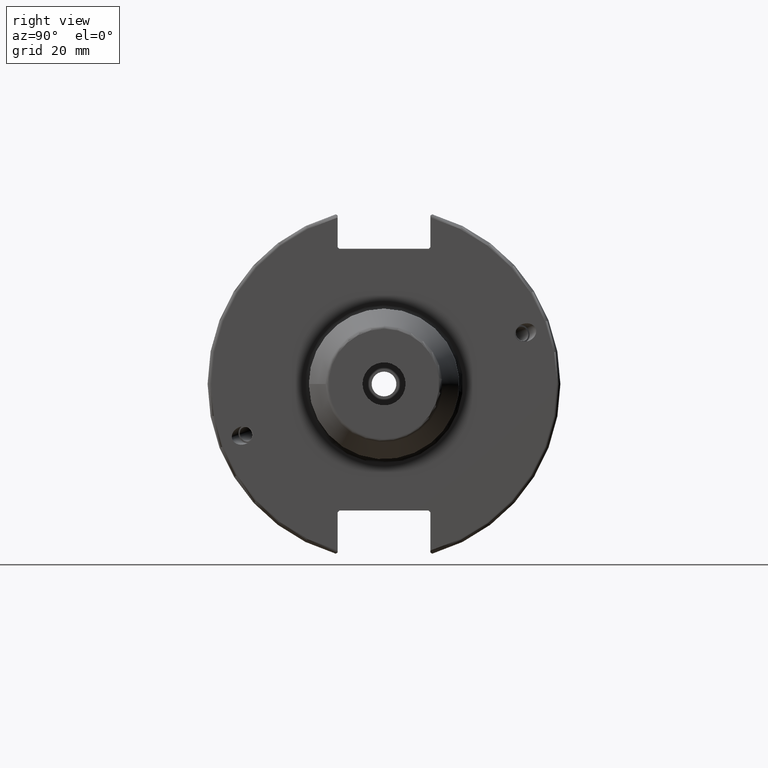
[diagram: clean part render]
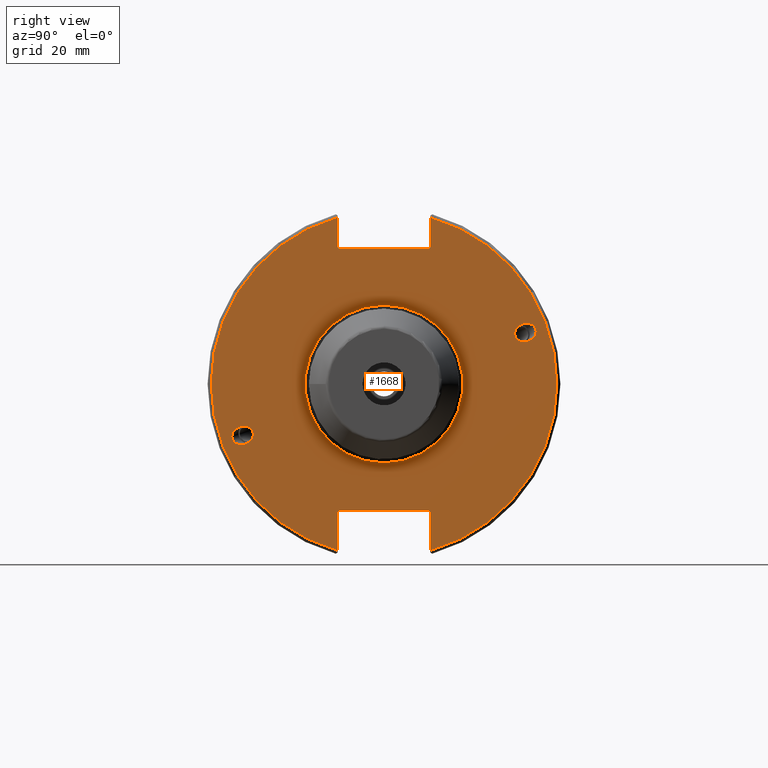
[diagram: same view with one face highlighted and labeled with its STEP entity id]
A machine part, right view. The second image highlights one B-rep face of the part: STEP entity #1668.
In plain terms, the highlighted planar face has unit normal (1, 0, 0).
Its self-contained STEP definition (entity closure, byte-faithful):
#51=ELLIPSE('',#1846,3.05193647190364,2.5);
#52=ELLIPSE('',#1847,3.05193647190364,2.5);
#72=FACE_BOUND('',#480,.T.);
#73=FACE_BOUND('',#481,.T.);
#74=FACE_BOUND('',#482,.T.);
#90=PLANE('',#1843);
#149=LINE('',#2679,#243);
#150=LINE('',#2681,#244);
#151=LINE('',#2683,#245);
#152=LINE('',#2685,#246);
#153=LINE('',#2687,#247);
#154=LINE('',#2691,#248);
#155=LINE('',#2693,#249);
#156=LINE('',#2695,#250);
#157=LINE('',#2697,#251);
#158=LINE('',#2698,#252);
#243=VECTOR('',#2162,10.);
#244=VECTOR('',#2163,10.);
#245=VECTOR('',#2164,10.);
#246=VECTOR('',#2165,10.);
#247=VECTOR('',#2166,10.);
#248=VECTOR('',#2169,10.);
#249=VECTOR('',#2170,10.);
#250=VECTOR('',#2171,10.);
#251=VECTOR('',#2172,10.);
#252=VECTOR('',#2173,10.);
#380=FACE_OUTER_BOUND('',#479,.T.);
#479=EDGE_LOOP('',(#1237,#1238,#1239,#1240,#1241,#1242,#1243,#1244,#1245,
#1246,#1247,#1248));
#480=EDGE_LOOP('',(#1249));
#481=EDGE_LOOP('',(#1250));
#482=EDGE_LOOP('',(#1251));
#625=CIRCLE('',#1842,22.);
#626=CIRCLE('',#1844,48.2125);
#627=CIRCLE('',#1845,48.2125);
#723=VERTEX_POINT('',#2671);
#724=VERTEX_POINT('',#2675);
#725=VERTEX_POINT('',#2676);
#726=VERTEX_POINT('',#2678);
#727=VERTEX_POINT('',#2680);
#728=VERTEX_POINT('',#2682);
#729=VERTEX_POINT('',#2684);
#730=VERTEX_POINT('',#2686);
#731=VERTEX_POINT('',#2688);
#732=VERTEX_POINT('',#2690);
#733=VERTEX_POINT('',#2692);
#734=VERTEX_POINT('',#2694);
#735=VERTEX_POINT('',#2696);
#736=VERTEX_POINT('',#2699);
#737=VERTEX_POINT('',#2701);
#915=EDGE_CURVE('',#723,#723,#625,.T.);
#916=EDGE_CURVE('',#724,#725,#626,.T.);
#917=EDGE_CURVE('',#724,#726,#149,.T.);
#918=EDGE_CURVE('',#727,#726,#150,.T.);
#919=EDGE_CURVE('',#727,#728,#151,.T.);
#920=EDGE_CURVE('',#729,#728,#152,.T.);
#921=EDGE_CURVE('',#729,#730,#153,.T.);
#922=EDGE_CURVE('',#731,#730,#627,.T.);
#923=EDGE_CURVE('',#731,#732,#154,.T.);
#924=EDGE_CURVE('',#733,#732,#155,.T.);
#925=EDGE_CURVE('',#733,#734,#156,.T.);
#926=EDGE_CURVE('',#735,#734,#157,.T.);
#927=EDGE_CURVE('',#735,#725,#158,.T.);
#928=EDGE_CURVE('',#736,#736,#51,.T.);
#929=EDGE_CURVE('',#737,#737,#52,.T.);
#1237=ORIENTED_EDGE('',*,*,#916,.F.);
#1238=ORIENTED_EDGE('',*,*,#917,.T.);
#1239=ORIENTED_EDGE('',*,*,#918,.F.);
#1240=ORIENTED_EDGE('',*,*,#919,.T.);
#1241=ORIENTED_EDGE('',*,*,#920,.F.);
#1242=ORIENTED_EDGE('',*,*,#921,.T.);
#1243=ORIENTED_EDGE('',*,*,#922,.F.);
#1244=ORIENTED_EDGE('',*,*,#923,.T.);
#1245=ORIENTED_EDGE('',*,*,#924,.F.);
#1246=ORIENTED_EDGE('',*,*,#925,.T.);
#1247=ORIENTED_EDGE('',*,*,#926,.F.);
#1248=ORIENTED_EDGE('',*,*,#927,.T.);
#1249=ORIENTED_EDGE('',*,*,#928,.T.);
#1250=ORIENTED_EDGE('',*,*,#929,.T.);
#1251=ORIENTED_EDGE('',*,*,#915,.F.);
#1668=ADVANCED_FACE('',(#380,#72,#73,#74),#90,.T.);
#1842=AXIS2_PLACEMENT_3D('',#2673,#2156,#2157);
#1843=AXIS2_PLACEMENT_3D('',#2674,#2158,#2159);
#1844=AXIS2_PLACEMENT_3D('',#2677,#2160,#2161);
#1845=AXIS2_PLACEMENT_3D('',#2689,#2167,#2168);
#1846=AXIS2_PLACEMENT_3D('',#2700,#2174,#2175);
#1847=AXIS2_PLACEMENT_3D('',#2702,#2176,#2177);
#2156=DIRECTION('center_axis',(1.,0.,0.));
#2157=DIRECTION('ref_axis',(0.,-1.,-1.22464679914735E-16));
#2158=DIRECTION('center_axis',(1.,0.,0.));
#2159=DIRECTION('ref_axis',(0.,0.,-1.));
#2160=DIRECTION('center_axis',(-1.,0.,0.));
#2161=DIRECTION('ref_axis',(0.,1.,-6.12323399573677E-17));
#2162=DIRECTION('',(0.,0.,-1.));
#2163=DIRECTION('',(0.,0.707106781186549,0.707106781186546));
#2164=DIRECTION('',(0.,-1.,0.));
#2165=DIRECTION('',(0.,0.707106781186549,-0.707106781186546));
#2166=DIRECTION('',(0.,0.,1.));
#2167=DIRECTION('center_axis',(-1.,0.,0.));
#2168=DIRECTION('ref_axis',(0.,-1.,1.60812264967664E-16));
#2169=DIRECTION('',(0.,0.,1.));
#2170=DIRECTION('',(0.,-0.707106781186549,-0.707106781186546));
#2171=DIRECTION('',(0.,1.,0.));
#2172=DIRECTION('',(0.,-0.707106781186549,0.707106781186546));
#2173=DIRECTION('',(0.,0.,-1.));
#2174=DIRECTION('center_axis',(-1.,0.,0.));
#2175=DIRECTION('ref_axis',(0.,0.939692620785908,0.342020143325669));
#2176=DIRECTION('center_axis',(-1.,0.,0.));
#2177=DIRECTION('ref_axis',(0.,-0.939692620785908,-0.342020143325669));
#2671=CARTESIAN_POINT('',(19.05,-2.69422295812418E-15,-22.));
#2673=CARTESIAN_POINT('Origin',(19.05,0.,0.));
#2674=CARTESIAN_POINT('Origin',(19.05,0.,0.));
#2675=CARTESIAN_POINT('',(19.05,12.95,46.4407434937254));
#2676=CARTESIAN_POINT('',(19.05,12.95,-46.4407434937254));
#2677=CARTESIAN_POINT('Origin',(19.05,0.,0.));
#2678=CARTESIAN_POINT('',(19.05,12.95,38.219));
#2679=CARTESIAN_POINT('',(19.05,12.95,18.8595));
#2680=CARTESIAN_POINT('',(19.05,12.45,37.719));
#2681=CARTESIAN_POINT('',(19.05,0.0327499999999836,25.30175));
#2682=CARTESIAN_POINT('',(19.05,-12.45,37.719));
#2683=CARTESIAN_POINT('',(19.05,0.,37.719));
#2684=CARTESIAN_POINT('',(19.05,-12.95,38.219));
#2685=CARTESIAN_POINT('',(19.05,-0.0327499999999817,25.30175));
#2686=CARTESIAN_POINT('',(19.05,-12.95,46.4407434937254));
#2687=CARTESIAN_POINT('',(19.05,-12.95,18.8595));
#2688=CARTESIAN_POINT('',(19.05,-12.95,-46.4407434937254));
#2689=CARTESIAN_POINT('Origin',(19.05,0.,0.));
#2690=CARTESIAN_POINT('',(19.05,-12.95,-35.806));
#2691=CARTESIAN_POINT('',(19.05,-12.95,-17.653));
#2692=CARTESIAN_POINT('',(19.05,-12.45,-35.306));
#2693=CARTESIAN_POINT('',(19.05,-0.635999999999989,-23.492));
#2694=CARTESIAN_POINT('',(19.05,12.45,-35.306));
#2695=CARTESIAN_POINT('',(19.05,-3.33066907387547E-15,-35.306));
#2696=CARTESIAN_POINT('',(19.05,12.95,-35.806));
#2697=CARTESIAN_POINT('',(19.05,0.635999999999982,-23.492));
#2698=CARTESIAN_POINT('',(19.05,12.95,-17.653));
#2699=CARTESIAN_POINT('',(19.05,36.5992078912529,13.3210222701368));
#2700=CARTESIAN_POINT('Origin',(19.05,39.4670900730082,14.3648460196781));
#2701=CARTESIAN_POINT('',(19.05,-36.5992078912529,-13.3210222701368));
#2702=CARTESIAN_POINT('Origin',(19.05,-39.4670900730082,-14.3648460196781));